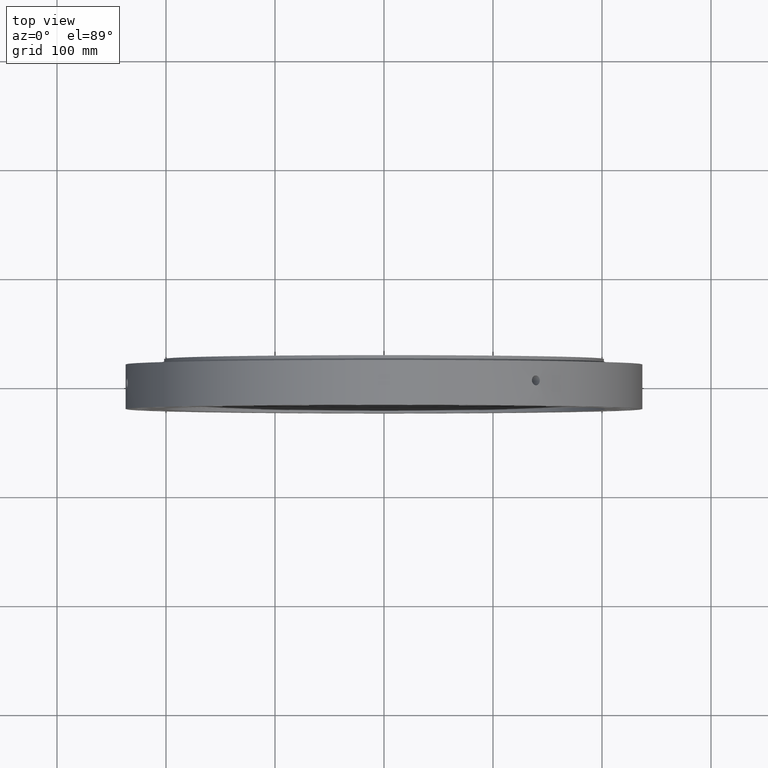
[diagram: clean part render]
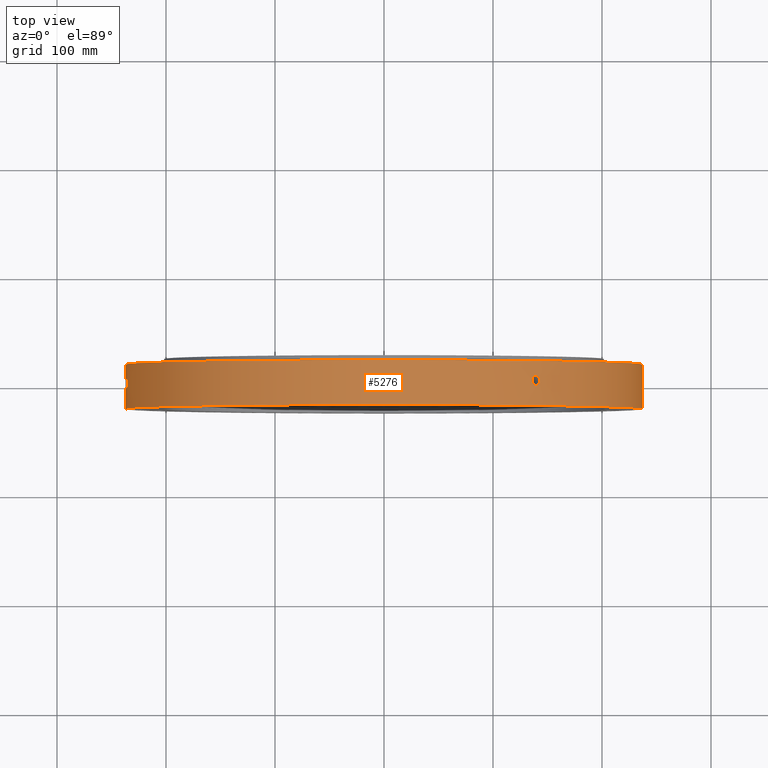
[diagram: same view with one face highlighted and labeled with its STEP entity id]
A machine part, top view. The second image highlights one B-rep face of the part: STEP entity #5276.
In plain terms, the highlighted cylindrical surface (partial cylindrical patch) has radius 237 mm, axis along (0, 1, 0).
Its self-contained STEP definition (entity closure, byte-faithful):
#26 = CARTESIAN_POINT ( 'NONE',  ( 136.0125163452603400, -1.994114082652987300, 194.0865995536273100 ) ) ;
#62 = CARTESIAN_POINT ( 'NONE',  ( 136.1280437559446700, -2.257606856043211000, 194.0056243632186900 ) ) ;
#103 = CARTESIAN_POINT ( 'NONE',  ( 138.8273582530202600, -4.470816178069622300, 192.0834395449949500 ) ) ;
#311 = CYLINDRICAL_SURFACE ( 'NONE', #5262, 237.0000000000000000 ) ;
#361 = AXIS2_PLACEMENT_3D ( 'NONE', #4042, #3958, #3948 ) ;
#381 = FACE_BOUND ( 'NONE', #747, .T. ) ;
#393 = EDGE_LOOP ( 'NONE', ( #3638, #627, #3649, #1113 ) ) ;
#434 = CARTESIAN_POINT ( 'NONE',  ( 237.0000000000000000, 18.00000000000000400, 2.902412913979226800E-014 ) ) ;
#438 = FACE_OUTER_BOUND ( 'NONE', #393, .T. ) ;
#462 = EDGE_CURVE ( 'NONE', #3639, #2593, #4586, .T. ) ;
#499 = CARTESIAN_POINT ( 'NONE',  ( 136.5470264462849700, -2.972415666191134100, 193.7110056696884600 ) ) ;
#507 = FACE_BOUND ( 'NONE', #4118, .T. ) ;
#517 = CARTESIAN_POINT ( 'NONE',  ( 137.6879572238241600, -4.045411622486155600, 192.9017906471200900 ) ) ;
#527 = CARTESIAN_POINT ( 'NONE',  ( 138.1316117845424900, -4.271077411715777000, 192.5843509352186500 ) ) ;
#552 = CARTESIAN_POINT ( 'NONE',  ( 137.0762485945128900, -3.578935167528617200, 193.3369119191676200 ) ) ;
#566 = CARTESIAN_POINT ( 'NONE',  ( 137.4737288144146700, -3.904669630318127200, 193.0544827893033600 ) ) ;
#627 = ORIENTED_EDGE ( 'NONE', *, *, #4064, .T. ) ;
#669 = CARTESIAN_POINT ( 'NONE',  ( 136.3948370234333500, -2.745178811161999000, 193.8181493429698300 ) ) ;
#701 = EDGE_CURVE ( 'NONE', #3830, #7251, #3985, .T. ) ;
#739 = CARTESIAN_POINT ( 'NONE',  ( 142.9205679255237600, 3.620271238087931600E-009, 189.0574284809929100 ) ) ;
#747 = EDGE_LOOP ( 'NONE', ( #6608, #5450 ) ) ;
#907 = CARTESIAN_POINT ( 'NONE',  ( 135.6394149761492500, 3.620270686997017900E-009, 194.3474957516251600 ) ) ;
#1010 = EDGE_CURVE ( 'NONE', #6079, #2138, #6551, .T. ) ;
#1113 = ORIENTED_EDGE ( 'NONE', *, *, #3224, .F. ) ;
#1426 = B_SPLINE_CURVE_WITH_KNOTS ( 'NONE', 3,
 ( #2821, #2875, #1851, #1833, #1846, #1840, #1825, #1828, #1810, #1815, #1808, #1807, #1798, #1794, #1780, #1784, #1789, #1788, #1776, #1751, #1773, #1771, #1748, #1762, #1741, #1747, #1728, #1727, #1716, #1723, #1711, #1710, #1697, #1705 ),
 .UNSPECIFIED., .F., .F.,
 ( 4, 2, 2, 2, 2, 2, 2, 2, 2, 2, 2, 2, 2, 2, 2, 2, 4 ),
 ( 0.007036280401974018100, 0.007915650526144509700, 0.008795020650315000400, 0.009674390774485491100, 0.01055376089865598200, 0.01143313102282647300, 0.01231250114699696300, 0.01319187127116745400, 0.01407124139533794500, 0.01495061151950843500, 0.01582998164367892600, 0.01670935176784941700, 0.01758872189201991100, 0.01846809201619040200, 0.01934746214036089200, 0.02022683226453138300, 0.02110620238870187400 ),
 .UNSPECIFIED. ) ;
#1619 = CARTESIAN_POINT ( 'NONE',  ( 142.8061489114418800, -1.164438999805423200, 189.1438793624014400 ) ) ;
#1697 = CARTESIAN_POINT ( 'NONE',  ( -235.1888198014615300, -0.2968299978523468700, 29.24412830630547700 ) ) ;
#1705 = CARTESIAN_POINT ( 'NONE',  ( -235.1888198014615100, 3.620271238087932400E-009, 29.24412830630547300 ) ) ;
#1710 = CARTESIAN_POINT ( 'NONE',  ( -235.1924141516316500, -0.5890188784448932000, 29.21526300930622700 ) ) ;
#1711 = CARTESIAN_POINT ( 'NONE',  ( -235.2064789538998500, -1.164438999805420800, 29.10181309273032100 ) ) ;
#1716 = CARTESIAN_POINT ( 'NONE',  ( -235.2446527060660900, -1.995140862134702400, 28.79177148985861800 ) ) ;
#1723 = CARTESIAN_POINT ( 'NONE',  ( -235.2171300781367300, -1.450711798165756700, 29.01576209798383100 ) ) ;
#1727 = CARTESIAN_POINT ( 'NONE',  ( -235.2614299834059200, -2.253648559344721300, 28.65460319469046300 ) ) ;
#1728 = CARTESIAN_POINT ( 'NONE',  ( -235.3007346945562100, -2.743330947590921600, 28.33003660929977500 ) ) ;
#1741 = CARTESIAN_POINT ( 'NONE',  ( -235.3723294425253400, -3.389719113196606200, 27.72921927402994100 ) ) ;
#1747 = CARTESIAN_POINT ( 'NONE',  ( -235.3234060962640500, -2.974764442003909900, 28.14138610659926000 ) ) ;
#1748 = CARTESIAN_POINT ( 'NONE',  ( -235.4554586591331700, -3.905602196453703500, 27.01458303622273900 ) ) ;
#1751 = CARTESIAN_POINT ( 'NONE',  ( -235.5769590397218600, -4.355937805094901800, 25.93415709914782900 ) ) ;
#1762 = CARTESIAN_POINT ( 'NONE',  ( -235.3987794820768900, -3.576141458418464800, 27.50409655582716400 ) ) ;
#1771 = CARTESIAN_POINT ( 'NONE',  ( -235.4851122648977900, -4.044916529699990300, 26.75509735190601600 ) ) ;
#1773 = CARTESIAN_POINT ( 'NONE',  ( -235.5456389403487100, -4.269365525714882800, 26.21688976412706800 ) ) ;
#1776 = CARTESIAN_POINT ( 'NONE',  ( -235.6397339147996200, -4.471278850760724800, 25.35744339259155600 ) ) ;
#1779 = CARTESIAN_POINT ( 'NONE',  ( 142.8973670201197000, -0.5890188784448952000, 189.0749739280499300 ) ) ;
#1780 = CARTESIAN_POINT ( 'NONE',  ( -235.8209730953571500, -4.356026667816503400, 23.61253470737612800 ) ) ;
#1784 = CARTESIAN_POINT ( 'NONE',  ( -235.7628174187683800, -4.470816178069621400, 24.18629921490022700 ) ) ;
#1788 = CARTESIAN_POINT ( 'NONE',  ( -235.6707909615166700, -4.499877436856619000, 25.06720065541975400 ) ) ;
#1789 = CARTESIAN_POINT ( 'NONE',  ( -235.7321961058615000, -4.500121777277181300, 24.48301411659959100 ) ) ;
#1794 = CARTESIAN_POINT ( 'NONE',  ( -235.8487461735080300, -4.271077411715778800, 23.33330940349337000 ) ) ;
#1798 = CARTESIAN_POINT ( 'NONE',  ( -235.9018297478256400, -4.045411622486157400, 22.79037342745568400 ) ) ;
#1801 = AXIS2_PLACEMENT_3D ( 'NONE', #2493, #6741, #6745 ) ;
#1807 = CARTESIAN_POINT ( 'NONE',  ( -235.9269508172098400, -3.904669630318121900, 22.52850011160309100 ) ) ;
#1808 = CARTESIAN_POINT ( 'NONE',  ( -235.9728015084901100, -3.578935167528611000, 22.04305757873419200 ) ) ;
#1810 = CARTESIAN_POINT ( 'NONE',  ( -236.0321651257242500, -2.972415666191124300, 21.39769087886303100 ) ) ;
#1815 = CARTESIAN_POINT ( 'NONE',  ( -235.9938531431492400, -3.392486275868143800, 21.81617353098922500 ) ) ;
#1825 = CARTESIAN_POINT ( 'NONE',  ( -236.0778210535810000, -2.257606856043226100, 20.88753187851730800 ) ) ;
#1828 = CARTESIAN_POINT ( 'NONE',  ( -236.0488595572147700, -2.745178811162012300, 21.21231913584559300 ) ) ;
#1833 = CARTESIAN_POINT ( 'NONE',  ( -236.1171649945604500, -1.168798980449058600, 20.43740954744547300 ) ) ;
#1840 = CARTESIAN_POINT ( 'NONE',  ( -236.0901839202090600, -1.994114082652982400, 20.74699461082691000 ) ) ;
#1846 = CARTESIAN_POINT ( 'NONE',  ( -236.1098298448056900, -1.449309042600406900, 20.52220698455039700 ) ) ;
#1851 = CARTESIAN_POINT ( 'NONE',  ( -236.1270657513404100, -0.5916586236431395900, 20.32269996188173900 ) ) ;
#2132 = CARTESIAN_POINT ( 'NONE',  ( 140.4773120141255200, -4.269365525714884600, 190.8800621909149400 ) ) ;
#2138 = VERTEX_POINT ( 'NONE', #907 ) ;
#2139 = CARTESIAN_POINT ( 'NONE',  ( 141.7003730396825500, -3.389719113196606200, 189.9738070081313300 ) ) ;
#2237 = CARTESIAN_POINT ( 'NONE',  ( -236.1271468454523300, 0.5853823953969666800, 20.32175788942887400 ) ) ;
#2239 = CARTESIAN_POINT ( 'NONE',  ( -235.5766761619499600, 4.355315553952317800, 25.93673835850608000 ) ) ;
#2242 = CARTESIAN_POINT ( 'NONE',  ( -235.1888198014615100, 3.620271238087932400E-009, 29.24412830630547300 ) ) ;
#2248 = CARTESIAN_POINT ( 'NONE',  ( -236.1172360489530300, 1.166182558648152500, 20.43658879787321700 ) ) ;
#2257 = CARTESIAN_POINT ( 'NONE',  ( -236.0902931136794500, 1.991306988786929000, 20.74574784509142900 ) ) ;
#2261 = CARTESIAN_POINT ( 'NONE',  ( -236.1098048500949200, 1.449780263145494100, 20.52249034121650700 ) ) ;
#2263 = CARTESIAN_POINT ( 'NONE',  ( -235.4850851360972400, 4.044793121827857400, 26.75533534859456400 ) ) ;
#2273 = CARTESIAN_POINT ( 'NONE',  ( -235.5455953797367100, 4.269226786308144600, 26.21728033904552300 ) ) ;
#2278 = CARTESIAN_POINT ( 'NONE',  ( -235.6709928126658400, 4.500230294548323700, 25.06534426443462500 ) ) ;
#2290 = ORIENTED_EDGE ( 'NONE', *, *, #5806, .F. ) ;
#2298 = CARTESIAN_POINT ( 'NONE',  ( -235.8493581916407000, 4.268944174392860400, 23.32711750102810200 ) ) ;
#2304 = CARTESIAN_POINT ( 'NONE',  ( -235.4552708088585300, 3.904582226720252800, 27.01621269928992000 ) ) ;
#2306 = CARTESIAN_POINT ( 'NONE',  ( -235.7631071433662600, 4.470382854745720300, 24.18346455853990000 ) ) ;
#2317 = CARTESIAN_POINT ( 'NONE',  ( -235.6396832006036600, 4.471287641246856700, 25.35792675494125300 ) ) ;
#2318 = CARTESIAN_POINT ( 'NONE',  ( 141.5186360665257700, -3.576141458418462100, 190.1092747734154500 ) ) ;
#2320 = CARTESIAN_POINT ( 'NONE',  ( -235.9270129233062800, 3.904360681608871600, 22.52785681693412600 ) ) ;
#2328 = CARTESIAN_POINT ( 'NONE',  ( -235.8210832630830100, 4.355669726742701400, 23.61142385741767300 ) ) ;
#2330 = CARTESIAN_POINT ( 'NONE',  ( -235.9943608322600700, 3.387312844740954200, 21.81065498449713400 ) ) ;
#2338 = CARTESIAN_POINT ( 'NONE',  ( -235.7331187936422600, 4.499766978894614400, 24.47417087920996800 ) ) ;
#2346 = CARTESIAN_POINT ( 'NONE',  ( -236.0488712444751800, 2.745299921589570600, 21.21219912548012600 ) ) ;
#2349 = CARTESIAN_POINT ( 'NONE',  ( -235.9023467298639500, 4.042735248535612100, 22.78501651653251500 ) ) ;
#2356 = CARTESIAN_POINT ( 'NONE',  ( -236.0321729107383000, 2.971931817696914300, 21.39757851989464800 ) ) ;
#2359 = CARTESIAN_POINT ( 'NONE',  ( -235.3987810809167900, 3.576078575792997600, 27.50407544173761900 ) ) ;
#2416 = CARTESIAN_POINT ( 'NONE',  ( -235.3723549910919000, 3.389932403685175000, 27.72900382767706500 ) ) ;
#2429 = VERTEX_POINT ( 'NONE', #434 ) ;
#2493 = CARTESIAN_POINT ( 'NONE',  ( 0.0000000000000000000, 18.00000000000000400, 0.0000000000000000000 ) ) ;
#2568 = CARTESIAN_POINT ( 'NONE',  ( -236.0780620054186700, 2.253229774089498900, 20.88481858421401300 ) ) ;
#2577 = CARTESIAN_POINT ( 'NONE',  ( -235.9729843854522100, 3.577503004879499100, 22.04110704799849400 ) ) ;
#2593 = VERTEX_POINT ( 'NONE', #3451 ) ;
#2728 = CARTESIAN_POINT ( 'NONE',  ( -235.3007054100291700, 2.742949898316128900, 28.33027797541213400 ) ) ;
#2771 = CARTESIAN_POINT ( 'NONE',  ( -235.2065032719214100, 1.165115265983002600, 29.10161657151930800 ) ) ;
#2779 = CARTESIAN_POINT ( 'NONE',  ( -235.1888198014615100, 3.620271238087932400E-009, 29.24412830630547300 ) ) ;
#2821 = CARTESIAN_POINT ( 'NONE',  ( -236.1295759708704100, 3.620270686997019100E-009, 20.29343124799102700 ) ) ;
#2844 = VERTEX_POINT ( 'NONE', #3666 ) ;
#2875 = CARTESIAN_POINT ( 'NONE',  ( -236.1295759708703800, -0.2935306186746014500, 20.29343124799102300 ) ) ;
#2976 = CARTESIAN_POINT ( 'NONE',  ( -235.2171064740704800, 1.450265922157801800, 29.01595438550255700 ) ) ;
#3011 = VECTOR ( 'NONE', #4472, 1000.000000000000000 ) ;
#3012 = CARTESIAN_POINT ( 'NONE',  ( -235.3233870824864500, 2.974606591865529100, 28.14154649897857400 ) ) ;
#3013 = EDGE_CURVE ( 'NONE', #7251, #3830, #1426, .T. ) ;
#3022 = CARTESIAN_POINT ( 'NONE',  ( -235.2614784440838800, 2.254268523519907100, 28.65420347741839500 ) ) ;
#3110 = LINE ( 'NONE', #4691, #3011 ) ;
#3224 = EDGE_CURVE ( 'NONE', #3639, #2844, #5896, .T. ) ;
#3315 = CARTESIAN_POINT ( 'NONE',  ( 135.6394149761492500, -0.2935306186746010100, 194.3474957516252200 ) ) ;
#3338 = DIRECTION ( 'NONE',  ( -1.000000000000000000, 0.0000000000000000000, 0.0000000000000000000 ) ) ;
#3451 = CARTESIAN_POINT ( 'NONE',  ( 237.0000000000000000, -23.00000000000001400, 2.902412913979226800E-014 ) ) ;
#3558 = CARTESIAN_POINT ( 'NONE',  ( -235.1924357512451700, 0.5902201731421858900, 29.21508914716075000 ) ) ;
#3638 = ORIENTED_EDGE ( 'NONE', *, *, #462, .T. ) ;
#3639 = VERTEX_POINT ( 'NONE', #5805 ) ;
#3649 = ORIENTED_EDGE ( 'NONE', *, *, #6783, .F. ) ;
#3663 = CARTESIAN_POINT ( 'NONE',  ( 135.6635073161497500, -0.5916586236431390400, 194.3306874807977900 ) ) ;
#3666 = CARTESIAN_POINT ( 'NONE',  ( -237.0000000000000000, 18.00000000000000400, 0.0000000000000000000 ) ) ;
#3749 = B_SPLINE_CURVE_WITH_KNOTS ( 'NONE', 3,
 ( #5600, #3315, #3663, #6278, #6032, #26, #62, #669, #499, #5759, #552, #566, #517, #527, #4866, #103, #5526, #7126, #4275, #5539, #2132, #4022, #3798, #2318, #2139, #5525, #5722, #4002, #5922, #6535, #1619, #1779, #4773, #6287 ),
 .UNSPECIFIED., .F., .F.,
 ( 4, 2, 2, 2, 2, 2, 2, 2, 2, 2, 2, 2, 2, 2, 2, 2, 4 ),
 ( 0.007036280401974051900, 0.007915650526144542600, 0.008795020650315033300, 0.009674390774485525800, 0.01055376089865601600, 0.01143313102282650700, 0.01231250114699699800, 0.01319187127116748900, 0.01407124139533798300, 0.01495061151950847400, 0.01582998164367896400, 0.01670935176784945800, 0.01758872189201995300, 0.01846809201619044300, 0.01934746214036093400, 0.02022683226453142500, 0.02110620238870191900 ),
 .UNSPECIFIED. ) ;
#3798 = CARTESIAN_POINT ( 'NONE',  ( 141.1230445115805600, -3.905602196453701300, 190.4031171404140500 ) ) ;
#3806 = CARTESIAN_POINT ( 'NONE',  ( -235.1888198014615300, 0.2967397756137257200, 29.24412830630548000 ) ) ;
#3830 = VERTEX_POINT ( 'NONE', #2242 ) ;
#3948 = DIRECTION ( 'NONE',  ( -1.000000000000000000, 0.0000000000000000000, 0.0000000000000000000 ) ) ;
#3958 = DIRECTION ( 'NONE',  ( 0.0000000000000000000, 1.000000000000000000, 0.0000000000000000000 ) ) ;
#3985 = B_SPLINE_CURVE_WITH_KNOTS ( 'NONE', 3,
 ( #2779, #3806, #3558, #2771, #2976, #4629, #3022, #2728, #3012, #2416, #2359, #2304, #2263, #2273, #2239, #2317, #2278, #2338, #2306, #2328, #2298, #2349, #2320, #2577, #2330, #2356, #2346, #2568, #2257, #2261, #2248, #2237, #4194, #4206 ),
 .UNSPECIFIED., .F., .F.,
 ( 4, 2, 2, 2, 2, 2, 2, 2, 2, 2, 2, 2, 2, 2, 2, 2, 4 ),
 ( 0.02110620238870187400, 0.02198530520462218400, 0.02286440802054249400, 0.02374351083646280400, 0.02462261365238311400, 0.02550171646830342400, 0.02638081928422373500, 0.02725992210014404100, 0.02813902491606435500, 0.02901812773198466500, 0.02989723054790497200, 0.03077633336382527800, 0.03165543617974558900, 0.03253453899566589900, 0.03341364181158620900, 0.03429274462750651900, 0.03517184744342682900 ),
 .UNSPECIFIED. ) ;
#4002 = CARTESIAN_POINT ( 'NONE',  ( 142.4463292936685000, -2.253648559344724900, 189.4150732989375900 ) ) ;
#4022 = CARTESIAN_POINT ( 'NONE',  ( 140.9131501199262000, -4.044916529699993800, 190.5585407584783000 ) ) ;
#4042 = CARTESIAN_POINT ( 'NONE',  ( 0.0000000000000000000, -23.00000000000001400, 0.0000000000000000000 ) ) ;
#4064 = EDGE_CURVE ( 'NONE', #2593, #2429, #3110, .T. ) ;
#4118 = EDGE_LOOP ( 'NONE', ( #2290, #4820 ) ) ;
#4194 = CARTESIAN_POINT ( 'NONE',  ( -236.1295759708704300, 0.2934413993712098300, 20.29343124799103000 ) ) ;
#4206 = CARTESIAN_POINT ( 'NONE',  ( -236.1295759708704100, 3.620270686997019100E-009, 20.29343124799102700 ) ) ;
#4275 = CARTESIAN_POINT ( 'NONE',  ( 139.7800571104108700, -4.471278850760723100, 191.3912740149256400 ) ) ;
#4472 = DIRECTION ( 'NONE',  ( 0.0000000000000000000, 1.000000000000000000, 0.0000000000000000000 ) ) ;
#4586 = CIRCLE ( 'NONE', #361, 237.0000000000000000 ) ;
#4629 = CARTESIAN_POINT ( 'NONE',  ( -235.2446880209860200, 1.995818397773009300, 28.79148389445615000 ) ) ;
#4691 = CARTESIAN_POINT ( 'NONE',  ( 237.0000000000000000, 22.16364734299516900, 2.902412913979226800E-014 ) ) ;
#4773 = CARTESIAN_POINT ( 'NONE',  ( 142.9205679255237800, -0.2968299978523485400, 189.0574284809929100 ) ) ;
#4820 = ORIENTED_EDGE ( 'NONE', *, *, #1010, .F. ) ;
#4866 = CARTESIAN_POINT ( 'NONE',  ( 138.3595414520089500, -4.356026667816505200, 192.4206860920572200 ) ) ;
#4906 = CARTESIAN_POINT ( 'NONE',  ( 142.9205679255237600, 0.2967397756137226100, 189.0574284809928300 ) ) ;
#5262 = AXIS2_PLACEMENT_3D ( 'NONE', #5469, #5610, #3338 ) ;
#5276 = ADVANCED_FACE ( 'NONE', ( #507, #381, #438 ), #311, .T. ) ;
#5446 = CARTESIAN_POINT ( 'NONE',  ( 142.8972272508917200, 0.5902201731421870000, 189.0750795649367100 ) ) ;
#5450 = ORIENTED_EDGE ( 'NONE', *, *, #701, .F. ) ;
#5469 = CARTESIAN_POINT ( 'NONE',  ( 0.0000000000000000000, 22.16364734299516900, 0.0000000000000000000 ) ) ;
#5476 = CIRCLE ( 'NONE', #1801, 237.0000000000000000 ) ;
#5495 = CARTESIAN_POINT ( 'NONE',  ( 142.9205679255237600, 3.620271238087931600E-009, 189.0574284809929100 ) ) ;
#5515 = CARTESIAN_POINT ( 'NONE',  ( 142.8059908780915100, 1.165115265983003100, 189.1439986830313600 ) ) ;
#5524 = CARTESIAN_POINT ( 'NONE',  ( 142.7371068499318200, 1.450265922157809600, 189.1960124184622300 ) ) ;
#5525 = CARTESIAN_POINT ( 'NONE',  ( 142.0328583141543400, -2.974764442003908100, 189.7253547311462400 ) ) ;
#5526 = CARTESIAN_POINT ( 'NONE',  ( 139.0690102391199000, -4.500121777277181300, 191.9085632592707800 ) ) ;
#5530 = CARTESIAN_POINT ( 'NONE',  ( -236.1295759708704100, 3.620270686997019100E-009, 20.29343124799102700 ) ) ;
#5539 = CARTESIAN_POINT ( 'NONE',  ( 140.2481183934603200, -4.355937805094901800, 191.0485525251106900 ) ) ;
#5542 = CARTESIAN_POINT ( 'NONE',  ( 142.5565004757434600, 1.995818397773014200, 189.3321339842900100 ) ) ;
#5543 = CARTESIAN_POINT ( 'NONE',  ( 142.4460073586955400, 2.254268523519899100, 189.4153151257519000 ) ) ;
#5600 = CARTESIAN_POINT ( 'NONE',  ( 135.6394149761492500, 3.620270686997017900E-009, 194.3474957516251600 ) ) ;
#5607 = CARTESIAN_POINT ( 'NONE',  ( 142.1850931279971300, 2.742949898316120500, 189.6112494257769800 ) ) ;
#5610 = DIRECTION ( 'NONE',  ( 0.0000000000000000000, 1.000000000000000000, 0.0000000000000000000 ) ) ;
#5617 = CARTESIAN_POINT ( 'NONE',  ( 142.0329877111406300, 2.974606591865524700, 189.7252580685421600 ) ) ;
#5630 = CARTESIAN_POINT ( 'NONE',  ( 141.7001992319511000, 3.389932403685168800, 189.9739368570153900 ) ) ;
#5663 = CARTESIAN_POINT ( 'NONE',  ( 141.5186185806077800, 3.576078575793003400, 190.1092867150962300 ) ) ;
#5683 = CARTESIAN_POINT ( 'NONE',  ( 141.1243619160589400, 3.904582226720257200, 190.4021396257705000 ) ) ;
#5688 = CARTESIAN_POINT ( 'NONE',  ( 140.9133426667042100, 4.044793121827855700, 190.5583982659036100 ) ) ;
#5689 = CARTESIAN_POINT ( 'NONE',  ( 140.4776284816209100, 4.269226786308143700, 190.8798291788590400 ) ) ;
#5696 = CARTESIAN_POINT ( 'NONE',  ( 140.2502123907524700, 4.355315553952317800, 191.0470169160949800 ) ) ;
#5705 = CARTESIAN_POINT ( 'NONE',  ( 139.7804503573869400, 4.471287641246858500, 191.3909884139687600 ) ) ;
#5720 = CARTESIAN_POINT ( 'NONE',  ( 139.5427212939368100, 4.500230294548324600, 191.5643945786505400 ) ) ;
#5721 = CARTESIAN_POINT ( 'NONE',  ( 139.0618131147791700, 4.499766978894612600, 191.9137839490234400 ) ) ;
#5722 = CARTESIAN_POINT ( 'NONE',  ( 142.1848987410757000, -2.743330947590925600, 189.6113954699775100 ) ) ;
#5734 = CARTESIAN_POINT ( 'NONE',  ( 138.8250482309001900, 4.470382854745718500, 192.0851077820370600 ) ) ;
#5743 = CARTESIAN_POINT ( 'NONE',  ( 138.3586345115880100, 4.355669726742697800, 192.4213369250856800 ) ) ;
#5755 = CARTESIAN_POINT ( 'NONE',  ( 138.1265554487761700, 4.268944174392859600, 192.5879769097016900 ) ) ;
#5759 = CARTESIAN_POINT ( 'NONE',  ( 136.8902870627818500, -3.392486275868152700, 193.4685851934461000 ) ) ;
#5767 = CARTESIAN_POINT ( 'NONE',  ( 137.6835764938980200, 4.042735248535608500, 192.9049168221602600 ) ) ;
#5768 = CARTESIAN_POINT ( 'NONE',  ( 137.4732027579374600, 3.904360681608865000, 193.0548582220951100 ) ) ;
#5776 = CARTESIAN_POINT ( 'NONE',  ( 137.0746508238258900, 3.577503004879494200, 193.3380455606304100 ) ) ;
#5778 = CARTESIAN_POINT ( 'NONE',  ( 136.5469330330710400, 2.971931817696915600, 193.7110685911926600 ) ) ;
#5792 = CARTESIAN_POINT ( 'NONE',  ( 136.3947389350383300, 2.745299921589555000, 193.8182194696168500 ) ) ;
#5796 = CARTESIAN_POINT ( 'NONE',  ( 136.1258144500689300, 2.253229774089481600, 194.0071896807828000 ) ) ;
#5797 = CARTESIAN_POINT ( 'NONE',  ( 136.0114912111961300, 1.991306988786919900, 194.0873175008144400 ) ) ;
#5804 = CARTESIAN_POINT ( 'NONE',  ( 135.8279004094626700, 1.449780263145484600, 194.2158439121595300 ) ) ;
#5806 = EDGE_CURVE ( 'NONE', #2138, #6079, #3749, .T. ) ;
#5805 = CARTESIAN_POINT ( 'NONE',  ( -237.0000000000000000, -23.00000000000001400, 0.0000000000000000000 ) ) ;
#5817 = CARTESIAN_POINT ( 'NONE',  ( 135.7572230901321300, 1.166182558648150700, 194.2652302908229000 ) ) ;
#5821 = CARTESIAN_POINT ( 'NONE',  ( 135.6627320045292900, 0.5853823953969665700, 194.3312287465851700 ) ) ;
#5830 = CARTESIAN_POINT ( 'NONE',  ( 135.6394149761492300, 0.2934413993712094400, 194.3474957516252500 ) ) ;
#5833 = CARTESIAN_POINT ( 'NONE',  ( 135.6394149761492500, 3.620270686997017900E-009, 194.3474957516251600 ) ) ;
#5889 = VECTOR ( 'NONE', #7179, 1000.000000000000000 ) ;
#5896 = LINE ( 'NONE', #7221, #5889 ) ;
#5922 = CARTESIAN_POINT ( 'NONE',  ( 142.5567318832080400, -1.995140862134708400, 189.3319596029710100 ) ) ;
#6032 = CARTESIAN_POINT ( 'NONE',  ( 135.8276675127468700, -1.449309042600411600, 194.2160072365471100 ) ) ;
#6079 = VERTEX_POINT ( 'NONE', #739 ) ;
#6180 = CARTESIAN_POINT ( 'NONE',  ( 136.8857617058831100, 3.387312844740955500, 193.4717841383593100 ) ) ;
#6278 = CARTESIAN_POINT ( 'NONE',  ( 135.7578983529155000, -1.168798980449058600, 194.2647583811277100 ) ) ;
#6287 = CARTESIAN_POINT ( 'NONE',  ( 142.9205679255237600, 3.620271238087931600E-009, 189.0574284809929100 ) ) ;
#6535 = CARTESIAN_POINT ( 'NONE',  ( 142.7369521260889400, -1.450711798165760900, 189.1961290039426400 ) ) ;
#6551 = B_SPLINE_CURVE_WITH_KNOTS ( 'NONE', 3,
 ( #5495, #4906, #5446, #5515, #5524, #5542, #5543, #5607, #5617, #5630, #5663, #5683, #5688, #5689, #5696, #5705, #5720, #5721, #5734, #5743, #5755, #5767, #5768, #5776, #6180, #5778, #5792, #5796, #5797, #5804, #5817, #5821, #5830, #5833 ),
 .UNSPECIFIED., .F., .F.,
 ( 4, 2, 2, 2, 2, 2, 2, 2, 2, 2, 2, 2, 2, 2, 2, 2, 4 ),
 ( 0.02110620238870191900, 0.02198530520462222900, 0.02286440802054253900, 0.02374351083646284600, 0.02462261365238315600, 0.02550171646830346600, 0.02638081928422377600, 0.02725992210014408600, 0.02813902491606439700, 0.02901812773198470700, 0.02989723054790501300, 0.03077633336382532400, 0.03165543617974563000, 0.03253453899566594000, 0.03341364181158625000, 0.03429274462750656100, 0.03517184744342687100 ),
 .UNSPECIFIED. ) ;
#6608 = ORIENTED_EDGE ( 'NONE', *, *, #3013, .F. ) ;
#6741 = DIRECTION ( 'NONE',  ( 0.0000000000000000000, 1.000000000000000000, 0.0000000000000000000 ) ) ;
#6745 = DIRECTION ( 'NONE',  ( -1.000000000000000000, 0.0000000000000000000, 0.0000000000000000000 ) ) ;
#6783 = EDGE_CURVE ( 'NONE', #2844, #2429, #5476, .T. ) ;
#7126 = CARTESIAN_POINT ( 'NONE',  ( 139.5442280501146700, -4.499877436856618100, 191.5632915749350500 ) ) ;
#7179 = DIRECTION ( 'NONE',  ( 0.0000000000000000000, 1.000000000000000000, 0.0000000000000000000 ) ) ;
#7221 = CARTESIAN_POINT ( 'NONE',  ( -237.0000000000000000, 22.16364734299516900, 0.0000000000000000000 ) ) ;
#7251 = VERTEX_POINT ( 'NONE', #5530 ) ;